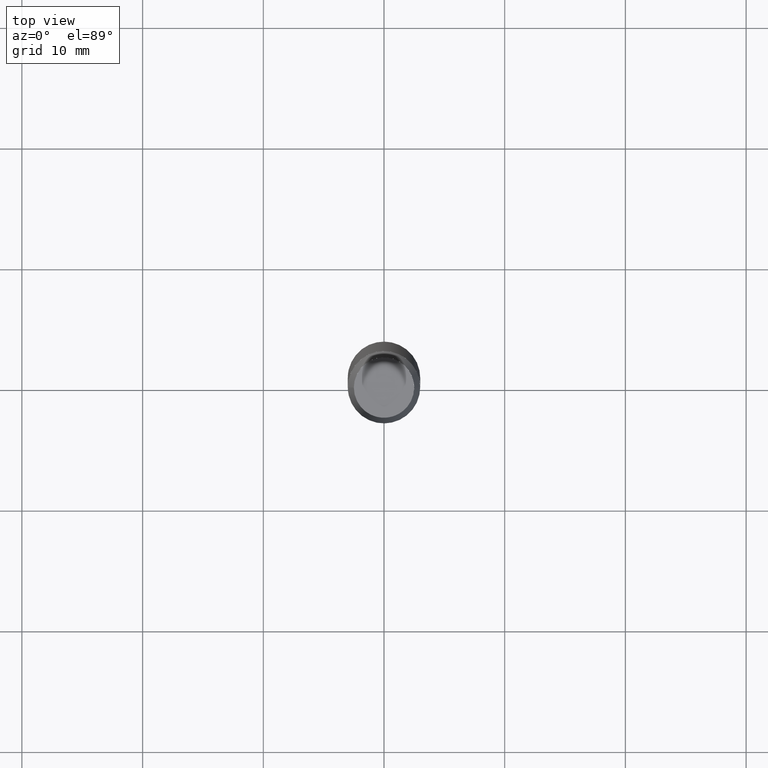
[diagram: clean part render]
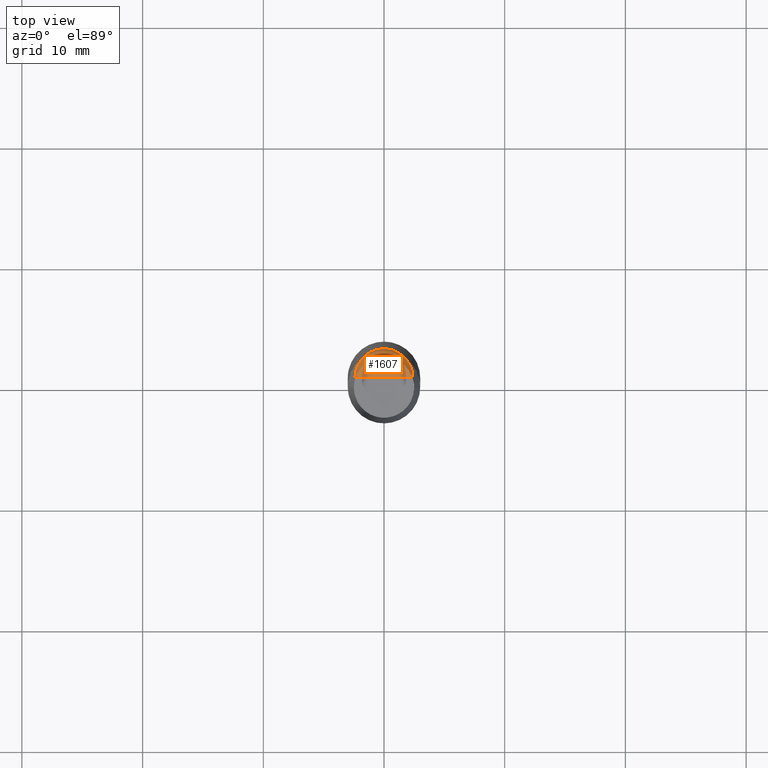
[diagram: same view with one face highlighted and labeled with its STEP entity id]
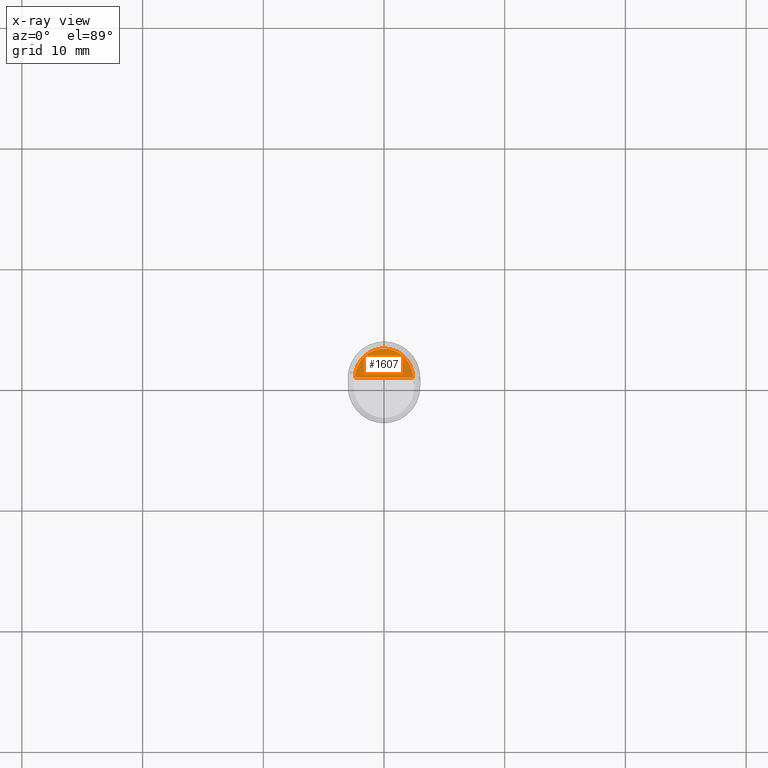
[diagram: x-ray of the same camera — body ghosted, the highlighted face saturated]
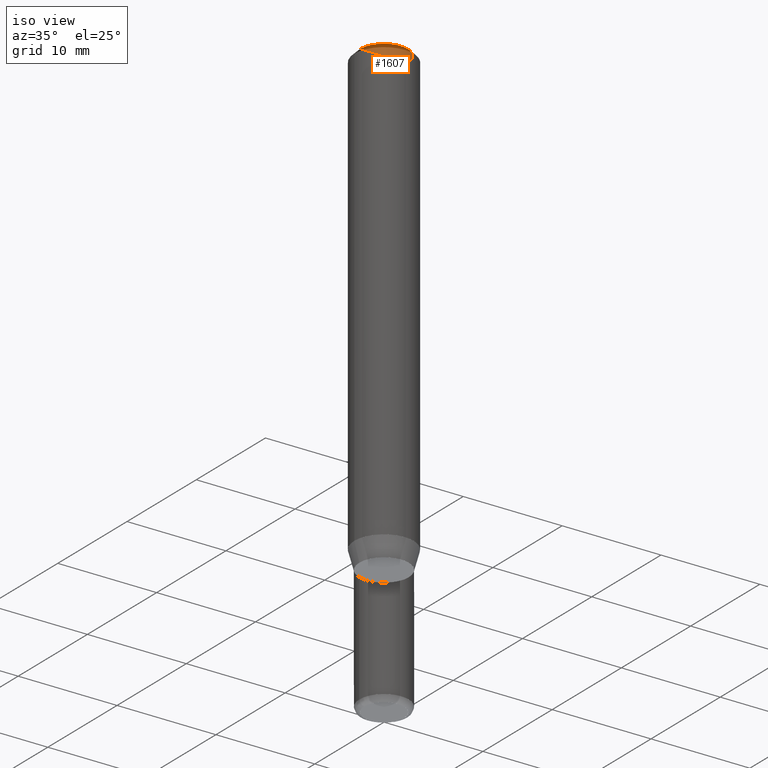
[diagram: same view with one face highlighted and labeled with its STEP entity id]
A machine part, top view. The second image highlights one B-rep face of the part: STEP entity #1607.
The next image is the same camera in x-ray: the body ghosted, the highlighted face saturated — about 0% of this face is hidden behind the body in this view.
A second angle (iso view) of the same face is appended — the face is thin or edge-on in the first view.
In plain terms, the highlighted face is a freeform B-spline surface patch.
Its self-contained STEP definition (entity closure, byte-faithful):
#1344=CARTESIAN_POINT('',(2.4,0.0,45.133974596216));
#1345=CARTESIAN_POINT('',(2.4,2.4,45.133974596216));
#1346=CARTESIAN_POINT('',(0.0,2.4,45.133974596216));
#1347=CARTESIAN_POINT('',(-2.4,2.4,45.133974596216));
#1348=CARTESIAN_POINT('',(-2.4,0.0,45.133974596216));
#1349=CARTESIAN_POINT('',(0.0,0.0,45.133974596216));
#1592=(
BOUNDED_SURFACE()
B_SPLINE_SURFACE(1,2,(
(#1344,#1345,#1346,#1347,#1348),
(#1349,#1349,#1349,#1349,#1349)
), .UNSPECIFIED.,.F.,.F.,.F.)
B_SPLINE_SURFACE_WITH_KNOTS((2,2),(3,2,3),(
0.0,1.0),(
0.0,0.5,1.0), .UNSPECIFIED.)
GEOMETRIC_REPRESENTATION_ITEM()
RATIONAL_B_SPLINE_SURFACE(((1.0,0.707106781187,1.0,0.707106781187,1.0),
(1.0,0.707106781187,1.0,0.707106781187,1.0)
))
REPRESENTATION_ITEM('')
SURFACE()
);
#1593=(
BOUNDED_CURVE()
B_SPLINE_CURVE(1,(#1349,#1344),.UNSPECIFIED.,.F.,.F.)
B_SPLINE_CURVE_WITH_KNOTS((2,2),
(0.0,1.0),.UNSPECIFIED.)
CURVE()
GEOMETRIC_REPRESENTATION_ITEM()
RATIONAL_B_SPLINE_CURVE((1.0,1.0))
REPRESENTATION_ITEM('')
);
#1594=(
BOUNDED_CURVE()
B_SPLINE_CURVE(2,(#1344,#1345,#1346,#1347,#1348),.UNSPECIFIED.,.F.,.F.)
B_SPLINE_CURVE_WITH_KNOTS((3,2,3),
(0.0,0.5,1.0),.UNSPECIFIED.)
CURVE()
GEOMETRIC_REPRESENTATION_ITEM()
RATIONAL_B_SPLINE_CURVE((1.0,0.707106781187,1.0,0.707106781187,1.0))
REPRESENTATION_ITEM('')
);
#1595=(
BOUNDED_CURVE()
B_SPLINE_CURVE(1,(#1348,#1349),.UNSPECIFIED.,.F.,.F.)
B_SPLINE_CURVE_WITH_KNOTS((2,2),
(0.0,1.0),.UNSPECIFIED.)
CURVE()
GEOMETRIC_REPRESENTATION_ITEM()
RATIONAL_B_SPLINE_CURVE((1.0,1.0))
REPRESENTATION_ITEM('')
);
#1596=VERTEX_POINT('',#1344);
#1597=VERTEX_POINT('',#1348);
#1598=VERTEX_POINT('',#1349);
#1599=EDGE_CURVE('',#1598,#1596,#1593,.T.);
#1600=EDGE_CURVE('',#1596,#1597,#1594,.T.);
#1601=EDGE_CURVE('',#1597,#1598,#1595,.T.);
#1602=ORIENTED_EDGE('',*,*,#1599,.T.);
#1603=ORIENTED_EDGE('',*,*,#1600,.T.);
#1604=ORIENTED_EDGE('',*,*,#1601,.T.);
#1605=EDGE_LOOP('',(#1602,#1603,#1604));
#1606=FACE_OUTER_BOUND('',#1605,.T.);
#1607=ADVANCED_FACE('',(#1606),#1592,.T.);